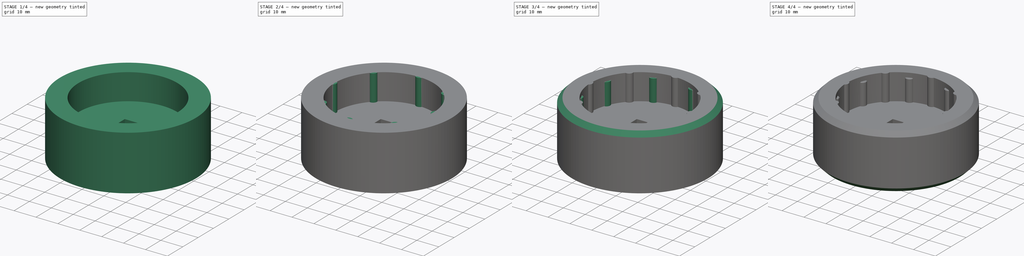
[diagram: build sequence overview — one tinted view per stage of 4, left to right]
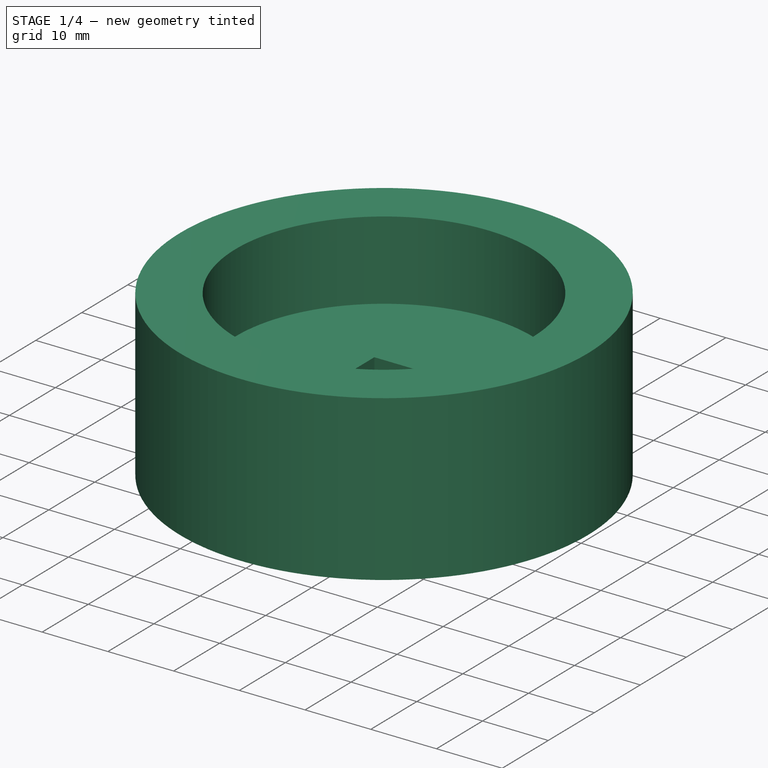
[diagram: stage 1 of 4 — iso view after this stage's code; geometry added in this stage tinted green]
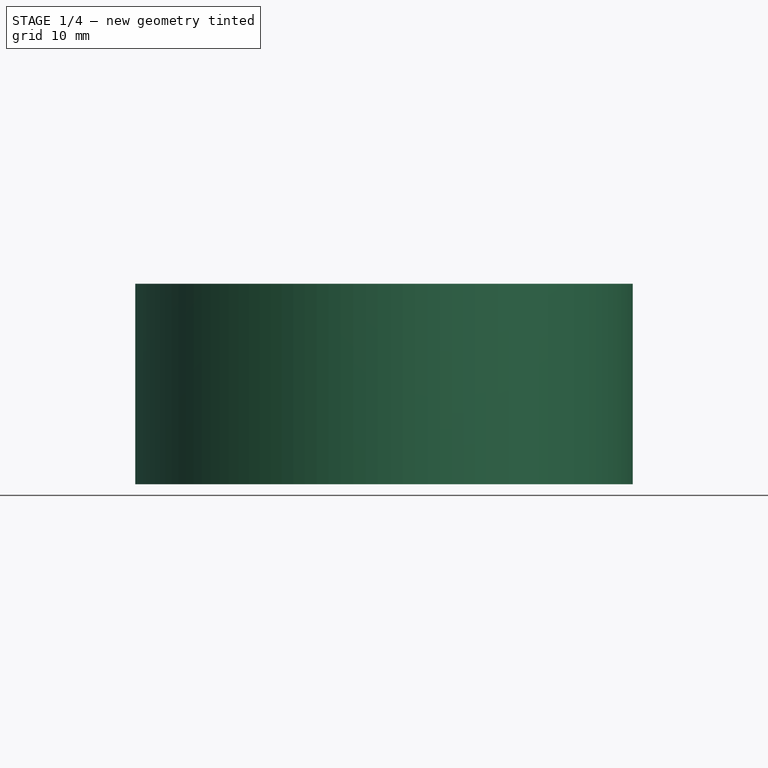
[diagram: stage 1 of 4 — front view after this stage's code; geometry added in this stage tinted green]
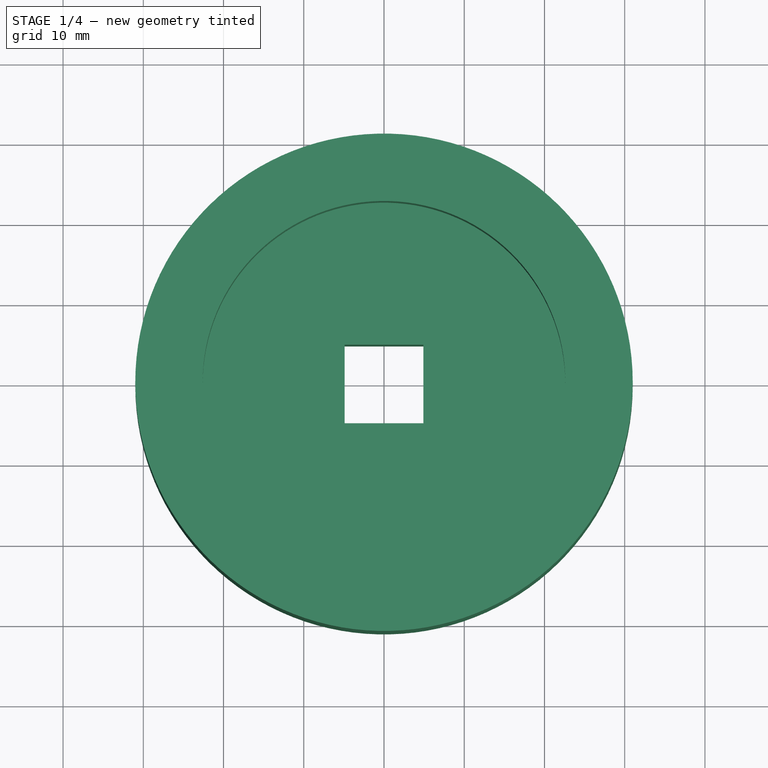
[diagram: stage 1 of 4 — top view after this stage's code; geometry added in this stage tinted green]
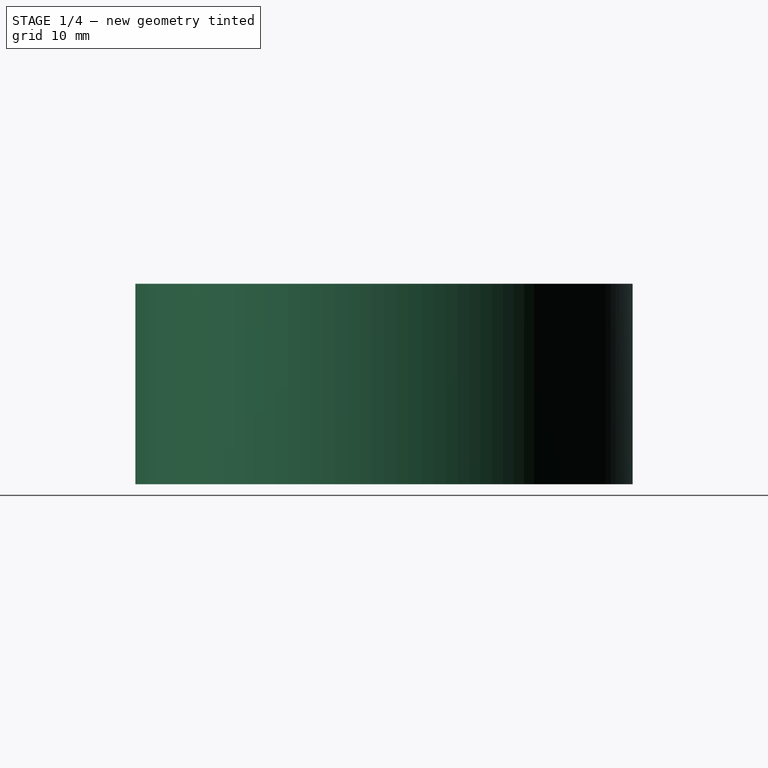
[diagram: stage 1 of 4 — right view after this stage's code; geometry added in this stage tinted green]
FCSTD DOCUMENT  (FreeCAD 0.16R)
Label: WR2
License: All rights reserved
LicenseURL: http://en.wikipedia.org/wiki/All_rights_reserved
objects: Sketcher::SketchObject×5, PartDesign::Chamfer×4, PartDesign::Pad×3, PartDesign::Pocket×2, PartDesign::PolarPattern×2
note: 21 computed .brp shape members not serialized (recipe doc carries the construction recipe); baked Part::Feature solids carry a one-line shape summary decoded from their .brp

FEATURE [Sketcher::SketchObject] Sketch
  sketch-geometry (1):
    g0: Circle CenterX=0 CenterY=0 CenterZ=0 NormalX=0 NormalY=0 NormalZ=1 Radius=31
  constraints (2):
    c: Radius(g0) = 31
    c: Coincident(g0,g-1)
FEATURE [PartDesign::Pad] Pad
  Length = 25
  Length2 = 100
  Sketch = -> Sketch
  Type = 0
FEATURE [Sketcher::SketchObject] Sketch001
  Placement = pos=(0,0,25) rot=(0,0,1;0rad)
  Support = -> Pad [Face3]
  sketch-geometry (1):
    g0: Circle CenterX=0 CenterY=0 CenterZ=0 NormalX=0 NormalY=0 NormalZ=1 Radius=22.6
  constraints (2):
    c: Coincident(g-1,g0)
    c: Radius(g0) = 22.6
FEATURE [PartDesign::Pocket] Pocket
  Length = 12
  Sketch = -> Sketch001
  Type = 0
FEATURE [Sketcher::SketchObject] Sketch003
  Placement = pos=(0,0,0) rot=(1,0,0;3.14159rad)
  Support = -> Pocket [Face2]
  sketch-geometry (4):
    g0: LineSegment StartX=-4.9 StartY=4.9 StartZ=0 EndX=4.9 EndY=4.9 EndZ=0
    g1: LineSegment StartX=4.9 StartY=4.9 StartZ=0 EndX=4.9 EndY=-4.9 EndZ=0
    g2: LineSegment StartX=4.9 StartY=-4.9 StartZ=0 EndX=-4.9 EndY=-4.9 EndZ=0
    g3: LineSegment StartX=-4.9 StartY=-4.9 StartZ=0 EndX=-4.9 EndY=4.9 EndZ=0
  constraints (11):
    c: Coincident(g0,g1)
    c: Coincident(g1,g2)
    c: Coincident(g2,g3)
    c: Coincident(g3,g0)
    c: Horizontal(g0)
    c: Horizontal(g2)
    c: Vertical(g1)
    c: Vertical(g3)
    c: Symmetric(g1,g0,g-1)
    c: Equal(g1,g0)
    c: Distance(g0) = 9.8
FEATURE [PartDesign::Pocket] Pocket001
  Length = 5
  Sketch = -> Sketch003
  Type = 1
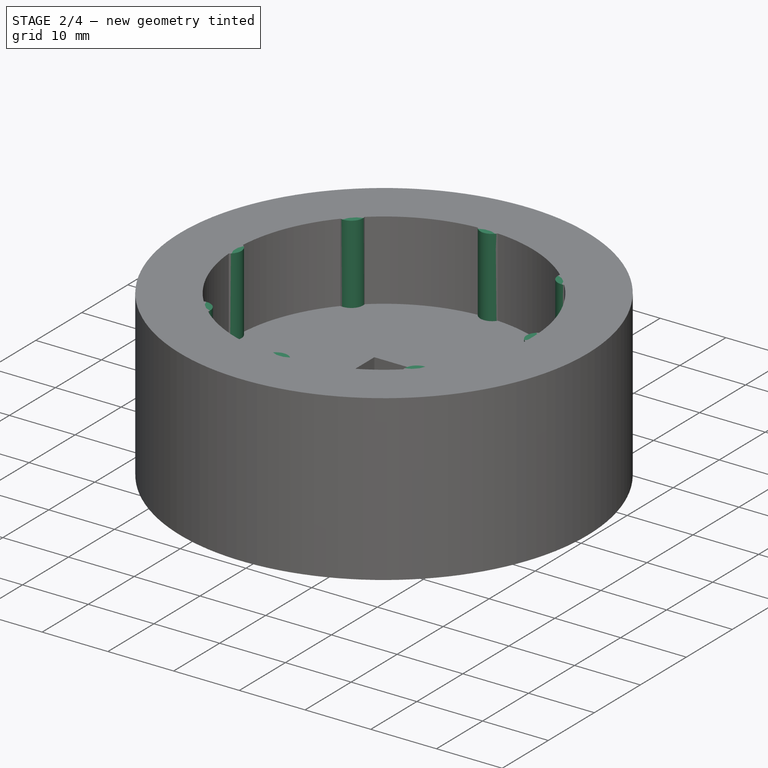
[diagram: stage 2 of 4 — iso view after this stage's code; geometry added in this stage tinted green]
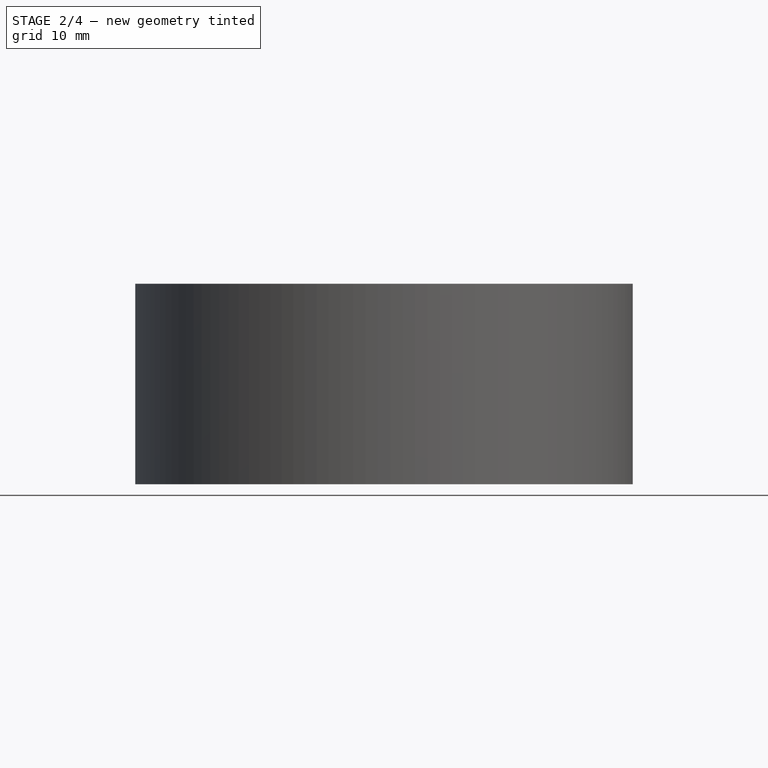
[diagram: stage 2 of 4 — front view after this stage's code; geometry added in this stage tinted green]
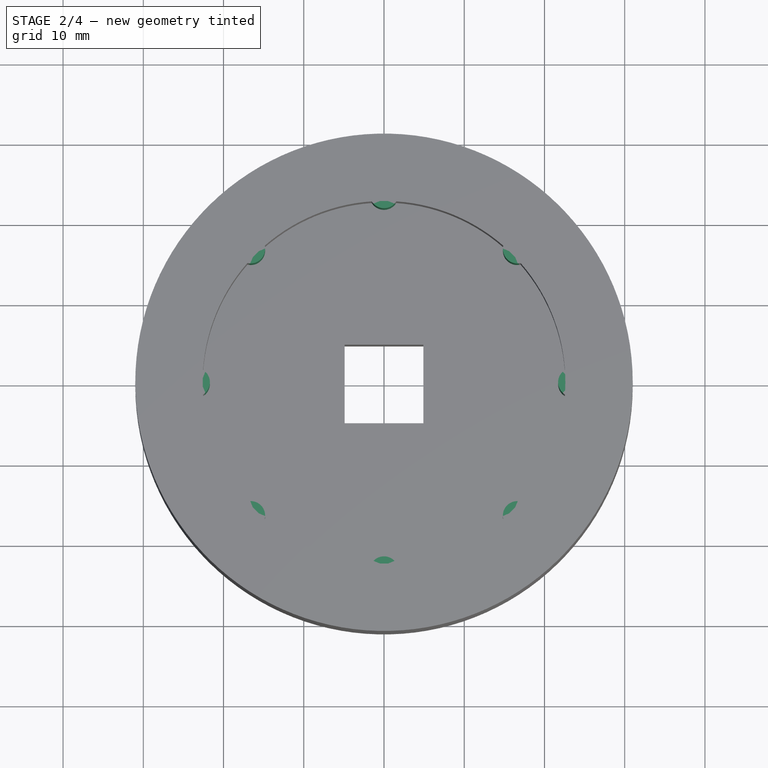
[diagram: stage 2 of 4 — top view after this stage's code; geometry added in this stage tinted green]
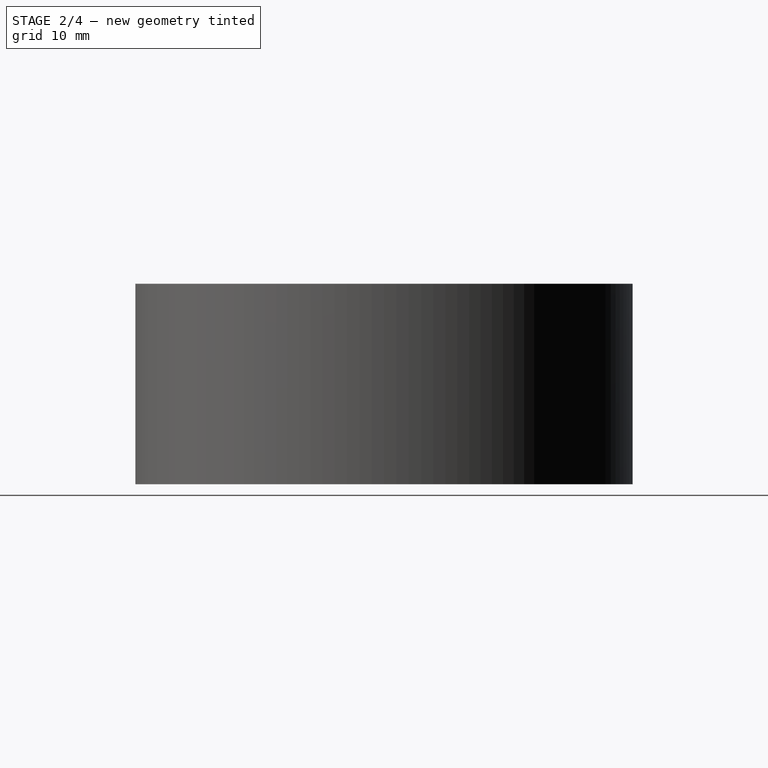
[diagram: stage 2 of 4 — right view after this stage's code; geometry added in this stage tinted green]
FEATURE [Sketcher::SketchObject] Sketch004
  Placement = pos=(0,0,13) rot=(0,0,1;0rad)
  Support = -> Pocket001 [Face9]
  sketch-geometry (1):
    g0: Circle CenterX=0 CenterY=23.5 CenterZ=0 NormalX=0 NormalY=0 NormalZ=1 Radius=1.8
  constraints (3):
    c: PointOnObject(g0,g-2)
    c: Radius(g0) = 1.8
    c: DistanceY(g0) = 23.5
FEATURE [PartDesign::Pad] Pad001
  Length = 12
  Length2 = 100
  Sketch = -> Sketch004
  Type = 0
FEATURE [PartDesign::PolarPattern] PolarPattern
  Angle = 360
  Axis = -> Sketch004 [N_Axis]
  Occurrences = 8
  Originals = -> [Pad001]
FEATURE [Sketcher::SketchObject] Sketch005
  Placement = pos=(0,0,13) rot=(0,0,1;0rad)
  Support = -> PolarPattern [Face24]
  sketch-geometry (1):
    g0: Circle CenterX=0 CenterY=23.5 CenterZ=0 NormalX=0 NormalY=0 NormalZ=1 Radius=1.8
  constraints (3):
    c: PointOnObject(g0,g-2)
    c: Radius(g0) = 1.8
    c: DistanceY(g0) = 23.5
FEATURE [PartDesign::Pad] Pad002
  Length = 10
  Length2 = 100
  Sketch = -> Sketch005
  Type = 0
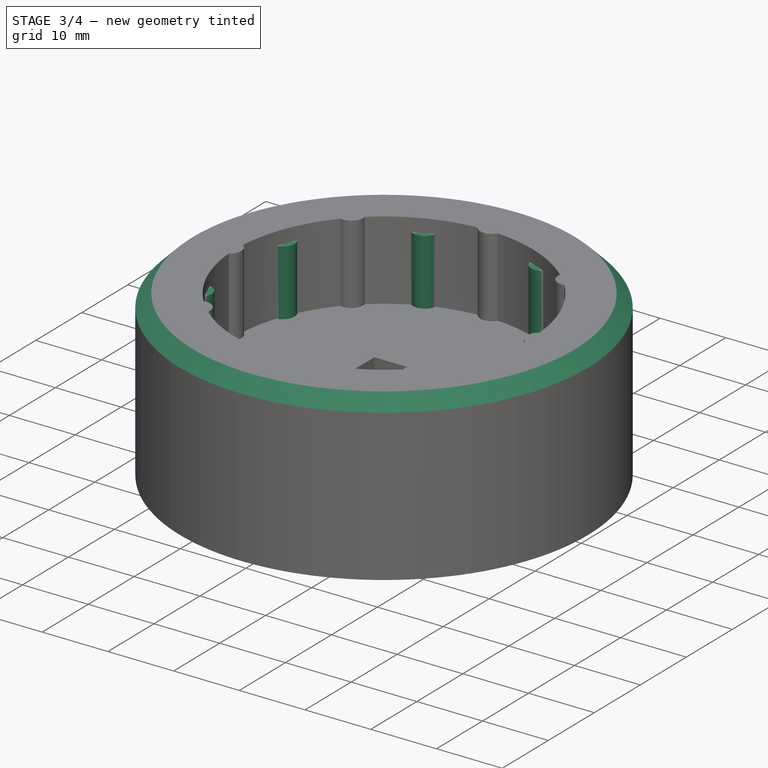
[diagram: stage 3 of 4 — iso view after this stage's code; geometry added in this stage tinted green]
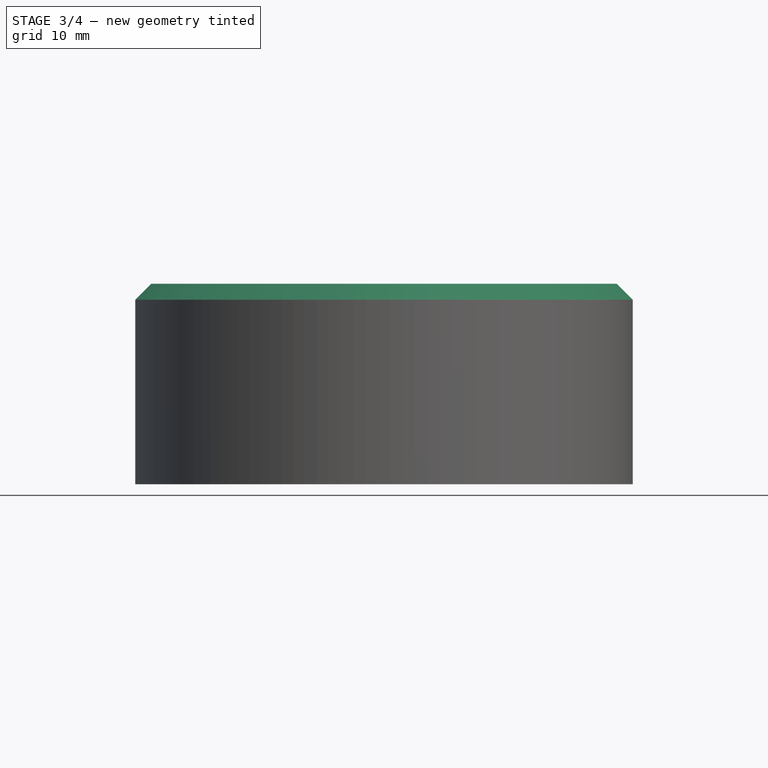
[diagram: stage 3 of 4 — front view after this stage's code; geometry added in this stage tinted green]
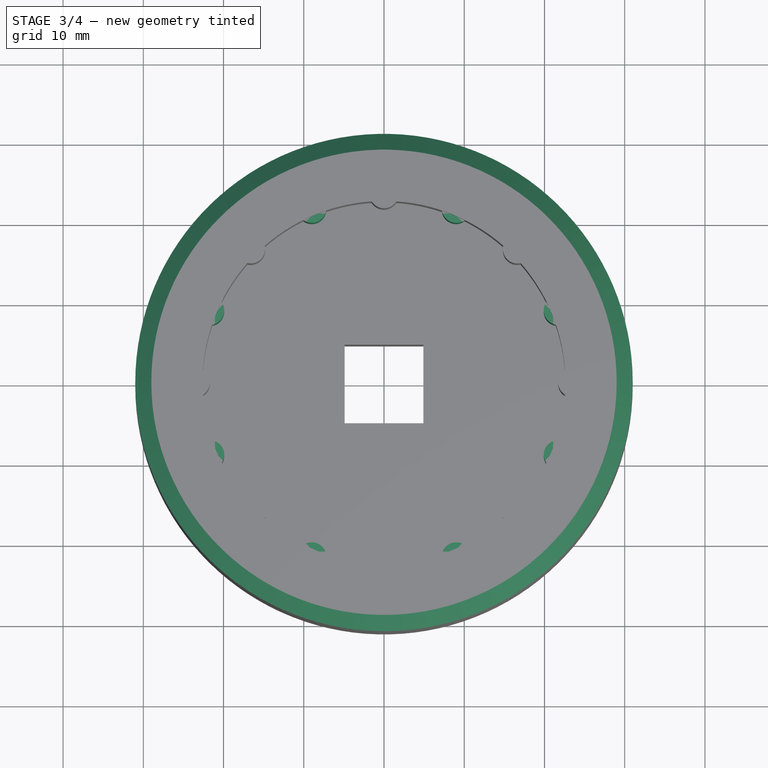
[diagram: stage 3 of 4 — top view after this stage's code; geometry added in this stage tinted green]
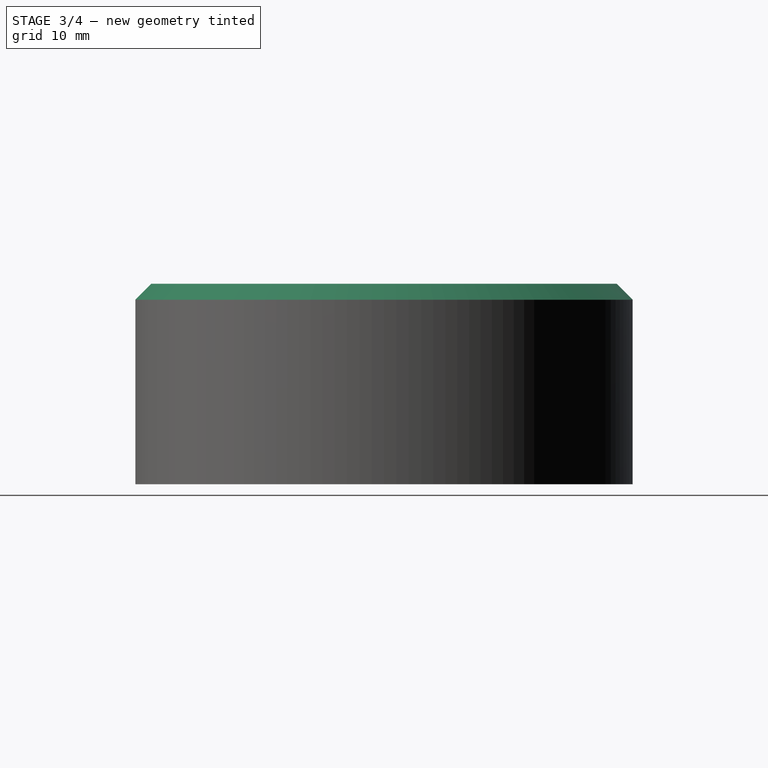
[diagram: stage 3 of 4 — right view after this stage's code; geometry added in this stage tinted green]
FEATURE [PartDesign::PolarPattern] PolarPattern001
  Angle = 360
  Axis = -> Sketch005 [N_Axis]
  Occurrences = 16
  Originals = -> [Pad002]
FEATURE [PartDesign::Chamfer] Chamfer
  Base = -> PolarPattern001 [Edge3]
  Size = 2
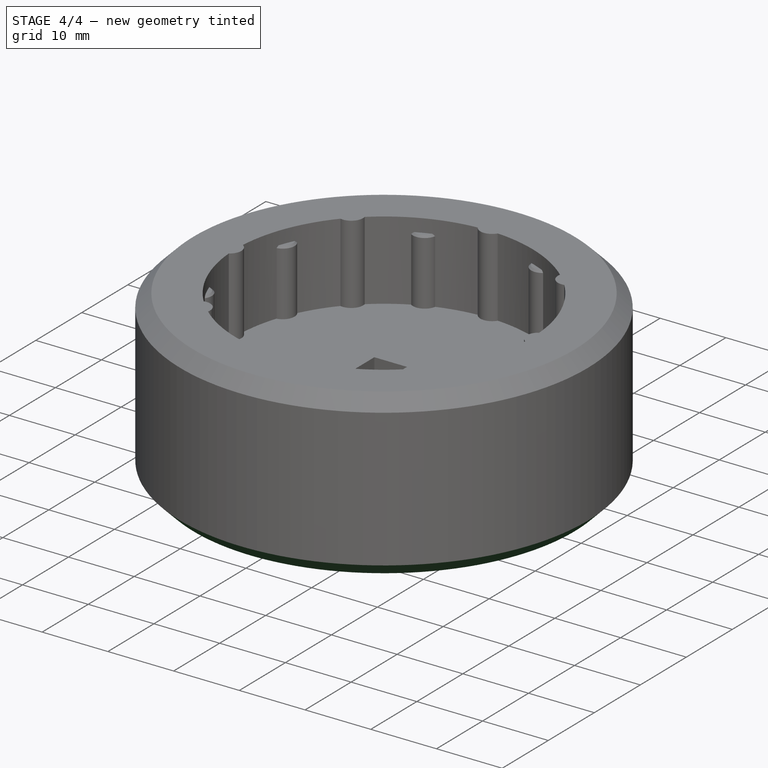
[diagram: stage 4 of 4 — iso view after this stage's code; geometry added in this stage tinted green]
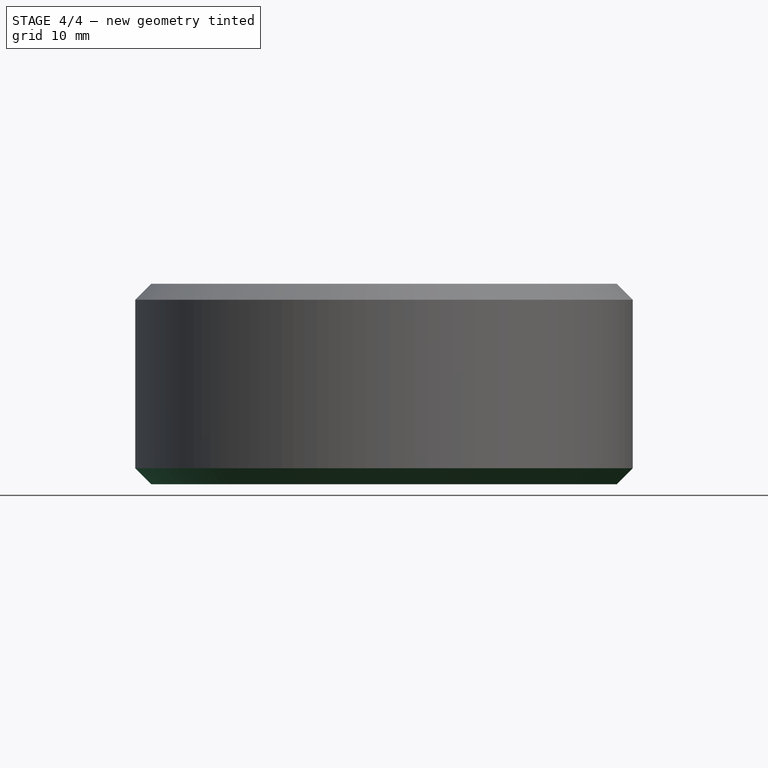
[diagram: stage 4 of 4 — front view after this stage's code; geometry added in this stage tinted green]
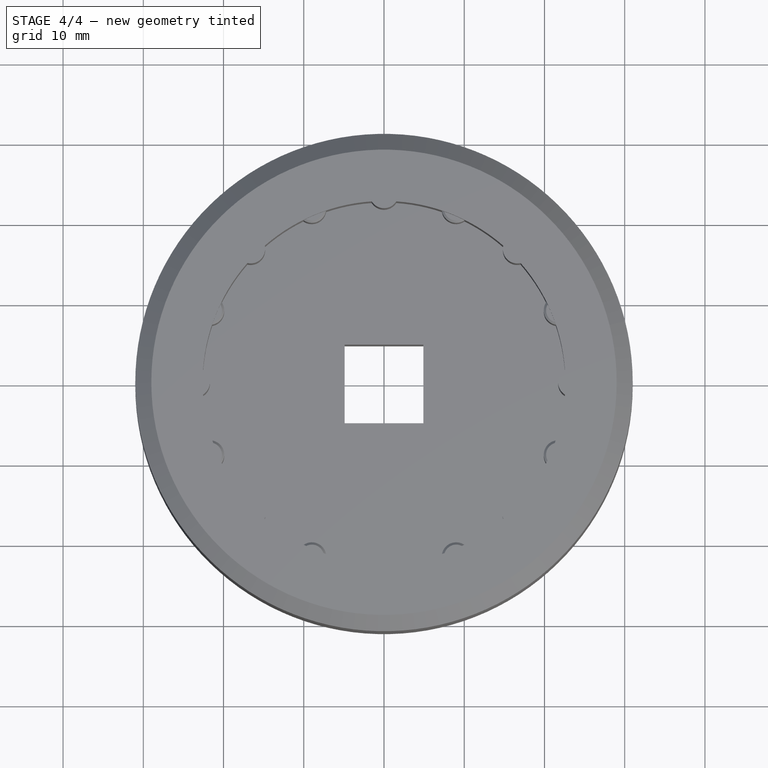
[diagram: stage 4 of 4 — top view after this stage's code; geometry added in this stage tinted green]
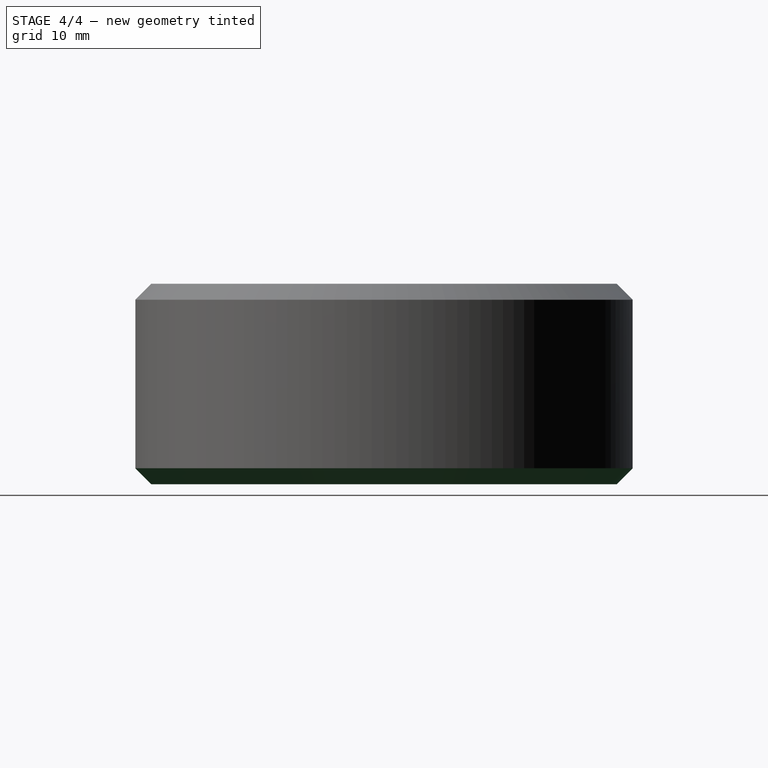
[diagram: stage 4 of 4 — right view after this stage's code; geometry added in this stage tinted green]
FEATURE [PartDesign::Chamfer] Chamfer001
  Base = -> Chamfer [Edge3]
  Size = 2
FEATURE [PartDesign::Chamfer] Chamfer002
  Base = -> Chamfer001 [Edge9,Edge8,Edge11,Edge10]
  Size = 0.5
FEATURE [PartDesign::Chamfer] Chamfer003
  Base = -> Chamfer002 [Edge70,Edge80,Edge90,Edge100,Edge110,Edge120,Edge130,Edge139]
  Size = 0.29
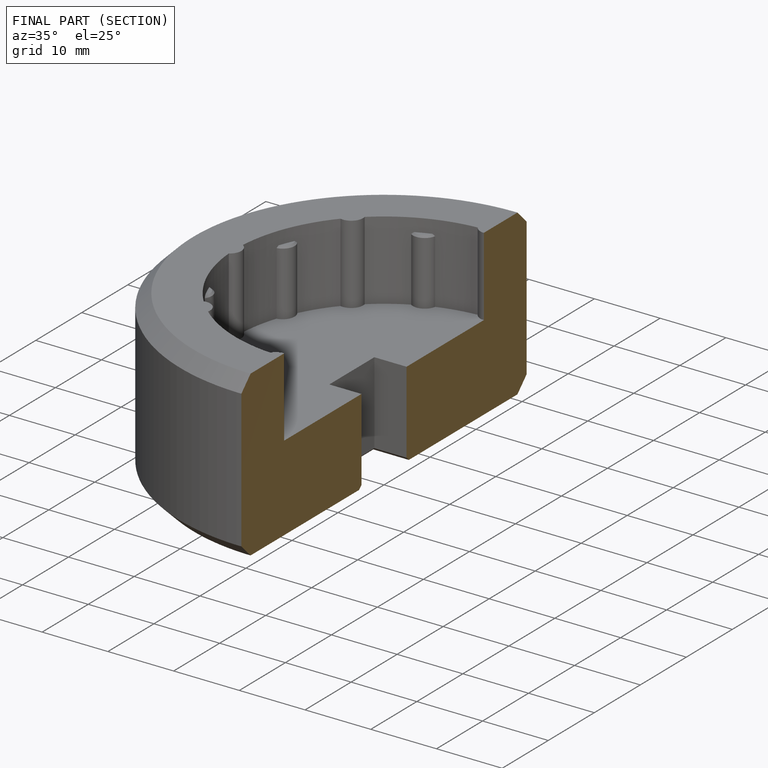
[diagram: finished part — half-section view (interior)]
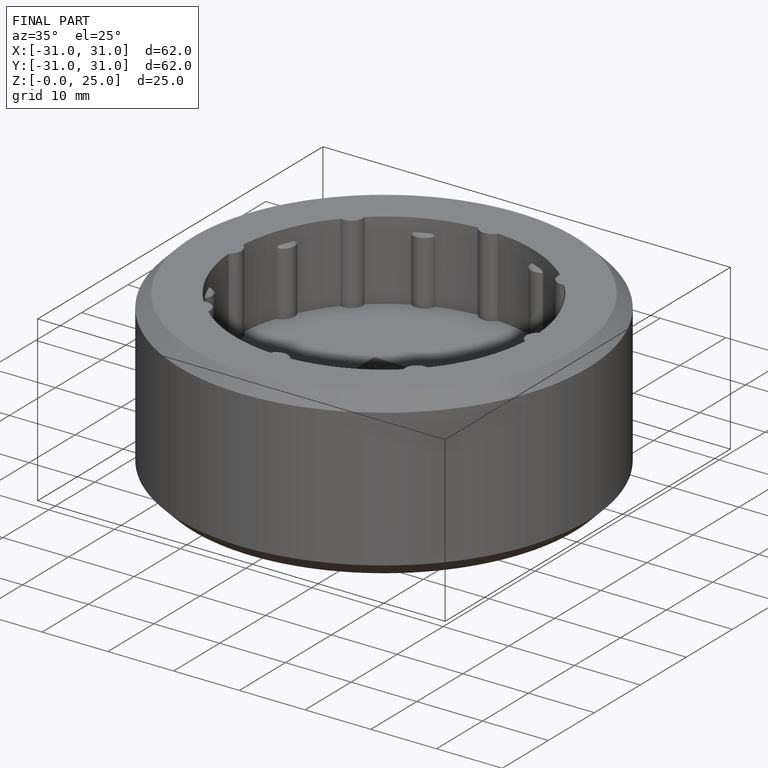
[diagram: finished part — iso view with bounding-box wireframe]
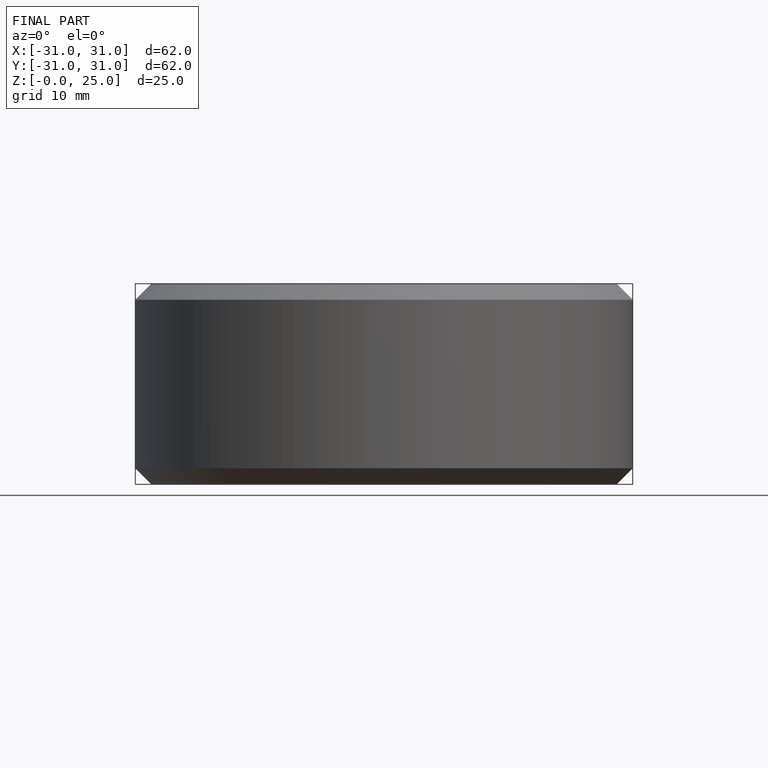
[diagram: finished part — front view with bounding-box wireframe]
